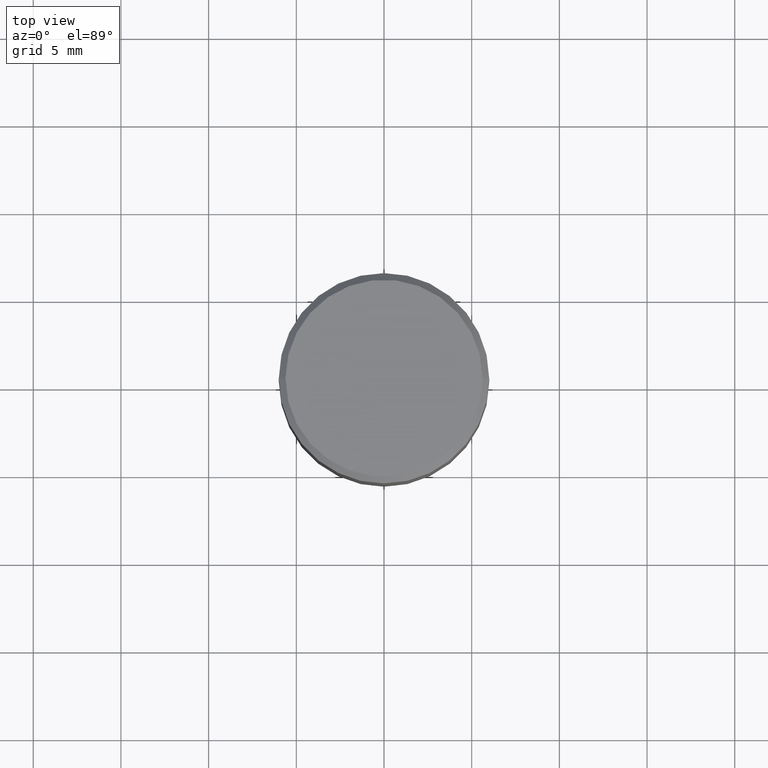
[diagram: clean part render]
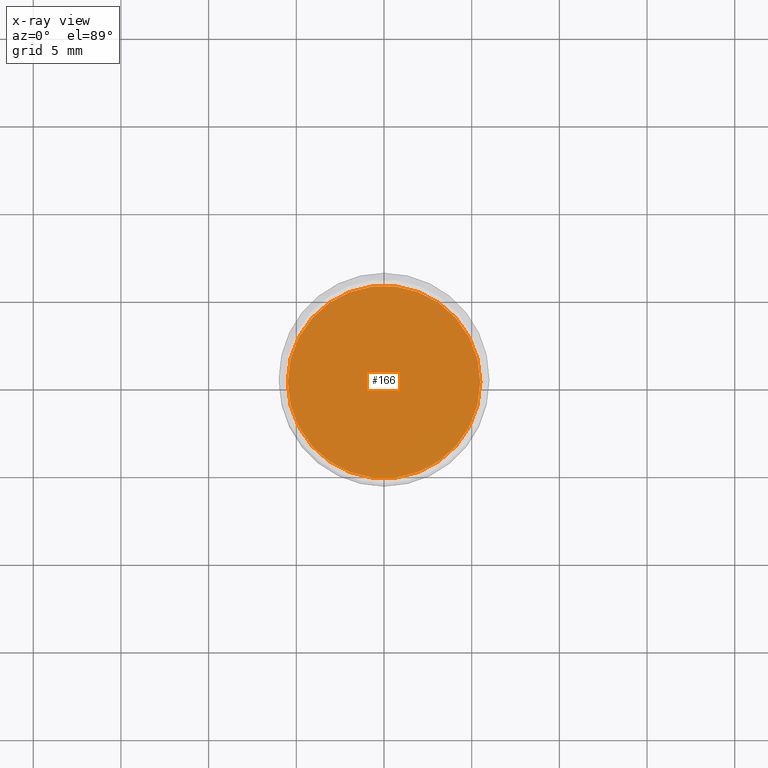
[diagram: x-ray — body ghosted, one internal face saturated and labeled with its STEP entity id]
A machine part, top view, then the same camera in x-ray: the body is ghosted and one INTERNAL B-rep face — a face not visible from any outside direction — is saturated and labeled: STEP entity #166.
In plain terms, the highlighted planar face has unit normal (-0, 0, 1).
Its self-contained STEP definition (entity closure, byte-faithful):
#17 = DIRECTION ( 'NONE',  ( 1.000000000000000000, -6.982962677686267499E-15, 0.000000000000000000 ) ) ;
#81 = VERTEX_POINT ( 'NONE', #346 ) ;
#113 = AXIS2_PLACEMENT_3D ( 'NONE', #284, #432, #426 ) ;
#115 = EDGE_LOOP ( 'NONE', ( #116, #336 ) ) ;
#116 = ORIENTED_EDGE ( 'NONE', *, *, #137, .F. ) ;
#124 = CARTESIAN_POINT ( 'NONE',  ( 1.261128263349675426E-29, -1.800556926441410962E-15, -0.5157000000000001583 ) ) ;
#137 = EDGE_CURVE ( 'NONE', #168, #81, #433, .T. ) ;
#166 = ADVANCED_FACE ( 'NONE', ( #267 ), #447, .F. ) ;
#168 = VERTEX_POINT ( 'NONE', #354 ) ;
#185 = AXIS2_PLACEMENT_3D ( 'NONE', #245, #461, #277 ) ;
#216 = AXIS2_PLACEMENT_3D ( 'NONE', #124, #231, #17 ) ;
#231 = DIRECTION ( 'NONE',  ( -2.445468806185136597E-29, 3.491481338843145583E-15, 1.000000000000000000 ) ) ;
#245 = CARTESIAN_POINT ( 'NONE',  ( 1.261128263349675426E-29, -1.800556926441410962E-15, -0.5157000000000001583 ) ) ;
#267 = FACE_OUTER_BOUND ( 'NONE', #115, .T. ) ;
#277 = DIRECTION ( 'NONE',  ( 1.000000000000000000, -6.982962677686265922E-15, 4.876176775795935793E-29 ) ) ;
#284 = CARTESIAN_POINT ( 'NONE',  ( 1.261128263349675426E-29, -1.800556926441410962E-15, -0.5157000000000001583 ) ) ;
#336 = ORIENTED_EDGE ( 'NONE', *, *, #425, .F. ) ;
#346 = CARTESIAN_POINT ( 'NONE',  ( -0.2160500000000000198, -2.627801186576033655E-16, -0.5157000000000001583 ) ) ;
#354 = CARTESIAN_POINT ( 'NONE',  ( 0.2160500000000000198, -3.309226012955529172E-15, -0.5157000000000001583 ) ) ;
#425 = EDGE_CURVE ( 'NONE', #81, #168, #438, .T. ) ;
#426 = DIRECTION ( 'NONE',  ( 1.000000000000000000, -6.982962677686267499E-15, 0.000000000000000000 ) ) ;
#432 = DIRECTION ( 'NONE',  ( -2.445468806185136597E-29, 3.491481338843145583E-15, 1.000000000000000000 ) ) ;
#433 = CIRCLE ( 'NONE', #216, 0.2160500000000000198 ) ;
#438 = CIRCLE ( 'NONE', #113, 0.2160500000000000198 ) ;
#447 = PLANE ( 'NONE',  #185 ) ;
#461 = DIRECTION ( 'NONE',  ( -2.438088387897960049E-29, 3.491481338843145188E-15, 1.000000000000000000 ) ) ;